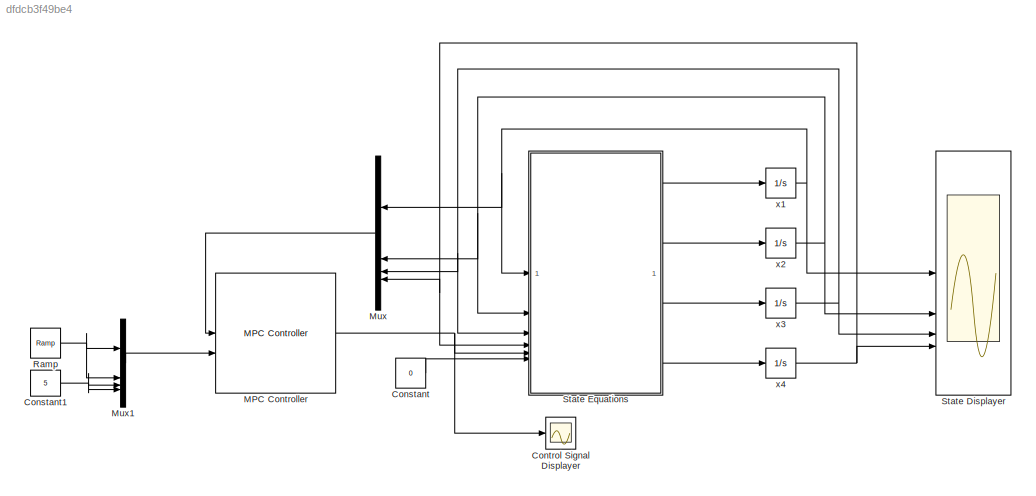
MODEL slx_dfdcb3f49be4
KIND model
CONFIG AbsTol = auto
CONFIG EnableMultiTasking = off
CONFIG FixedStep = auto
CONFIG MaxStep = auto
CONFIG MinStep = auto
CONFIG RelTol = 1e-3
CONFIG SampleTimeConstraint = Unconstrained
CONFIG SolverName = VariableStepAuto
CONFIG StartTime = 0.0
CONFIG StopTime = 50
BLOCK [Constant] Constant
  Value = 0
BLOCK [Constant] Constant1
  Value = 5
BLOCK [Scope] Control Signal Displayer
  Floating = off
  NumInputPorts = 1
  ScopeSpecificationString = Simulink.scopes.TimeScopeBlockCfg('CurrentConfiguration', extmgr.ConfigurationSet(extmgr.Configuration('Core','General UI',true),extmgr.Configuration('Core','Source UI',true),extmgr.Configuration('Sources','WiredSimulink',true),extmgr.Configuration('Visuals','Time Domain',true,'SerializedDisplays',{struct('MinYLimReal','-2385.78046','MaxYLimReal','10980.46245','YLabelReal','','MinYLimMag','  0.000...<+1532ch>
BLOCK [Reference] MPC Controller  REF=mpclib/MPC Controller  (lib defined in mdl_ae329e0e0455)
  SCDEnableBlockLinearizationSpecification = on
  SourceBlock = mpclib/MPC Controller
  SourceType = MPC
BLOCK [Mux] Mux
  DisplayOption = bar
  NameLocation = top
BLOCK [Mux] Mux1
  DisplayOption = bar
BLOCK [Reference] Ramp  REF=simulink/Sources/Ramp
  SourceBlock = simulink/Sources/Ramp
  SourceType = Ramp
BLOCK [Scope] State Displayer
  Floating = off
  NumInputPorts = 4
  ScopeSpecificationString = Simulink.scopes.TimeScopeBlockCfg('CurrentConfiguration', extmgr.ConfigurationSet(extmgr.Configuration('Core','General UI',true),extmgr.Configuration('Core','Source UI',true),extmgr.Configuration('Sources','WiredSimulink',true,'DataLoggingVariableName','ScopeData1'),extmgr.Configuration('Visuals','Time Domain',true,'SerializedDisplays',{struct('MinYLimReal','-73.86133','MaxYLimReal','12.37437','YL...<+3836ch>
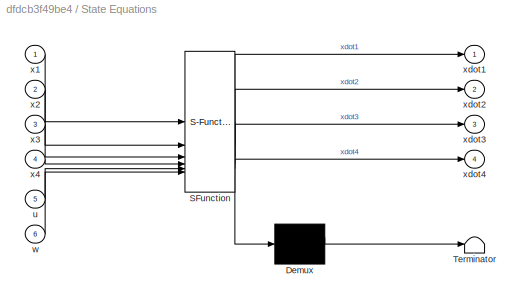
BLOCK [SubSystem] State Equations
  ErrorFcn = Stateflow.Translate.translate
  PermitHierarchicalResolution = ExplicitOnly
  SFBlockType = MATLAB Function
  TreatAsAtomicUnit = on
BLOCK [Demux] State Equations/ Demux 
  Outputs = 1
BLOCK [S-Function] State Equations/ SFunction 
  EnableBusSupport = on
  FunctionName = sf_sfun
  PortCounts = [6 5]
  SFcnIsStateOwnerBlock = off
  SFunctionDeploymentMode = off
  Tag = Stateflow S-Function 2
BLOCK [Terminator] State Equations/ Terminator 
BLOCK [Inport] State Equations/u
  Port = 5
BLOCK [Inport] State Equations/w
  Port = 6
BLOCK [Inport] State Equations/x1
BLOCK [Inport] State Equations/x2
  Port = 2
BLOCK [Inport] State Equations/x3
  Port = 3
BLOCK [Inport] State Equations/x4
  Port = 4
BLOCK [Outport] State Equations/xdot1
BLOCK [Outport] State Equations/xdot2
  Port = 2
BLOCK [Outport] State Equations/xdot3
  Port = 3
BLOCK [Outport] State Equations/xdot4
  Port = 4
BLOCK [Integrator] x1
BLOCK [Integrator] x2
BLOCK [Integrator] x3
  InitialCondition = 2
BLOCK [Integrator] x4
  InitialCondition = 0.5
NET Constant1:1 -> Mux1:3, Mux1:4
LINE Constant:1 -> State Equations:6
NET MPC Controller:1 -> Control Signal Displayer:1, State Equations:5
LINE Mux1:1 -> MPC Controller:2
LINE Mux:1 -> MPC Controller:1
NET Ramp:1 -> Mux1:1, Mux1:2
LINE State Equations:1 -> x1:1
LINE State Equations:2 -> x2:1
LINE State Equations:3 -> x3:1
LINE State Equations:4 -> x4:1
NET x1:1 -> Mux:1, State Displayer:1, State Equations:1
NET x2:1 -> Mux:2, State Displayer:2, State Equations:2
NET x3:1 -> Mux:3, State Displayer:3, State Equations:3
NET x4:1 -> Mux:4, State Displayer:4, State Equations:4
note: NET lines group one-source signal fan-out (src -> all destinations, sorted); 1:1 wires keep LINE
CHART State Equations states=1 transitions=1
  STATE_LABEL 'eML_blk_kernel()'
  STATE_LABEL 'SCRIPT:\nfunction [xdot1, xdot2, xdot3, xdot4] = fcn(x1, x2, x3, x4, u, w)\n\n% Parameter Values\n\nm1 = 10000;\nm2 = 8000;\nk = 500000;\nc = 5000;\n\n% State-Equations\n\nxdot1 = x3;\nxdot2 = x4;\nxdot3 = (1 / m1) * (k * (-x1 + x2) + c * (-x3 + x4) + u + w);\nxdot4 = (1 / m2) * (k * (x1 - x2) + c * (x3 - x4));'
CHART  states=0 transitions=0
